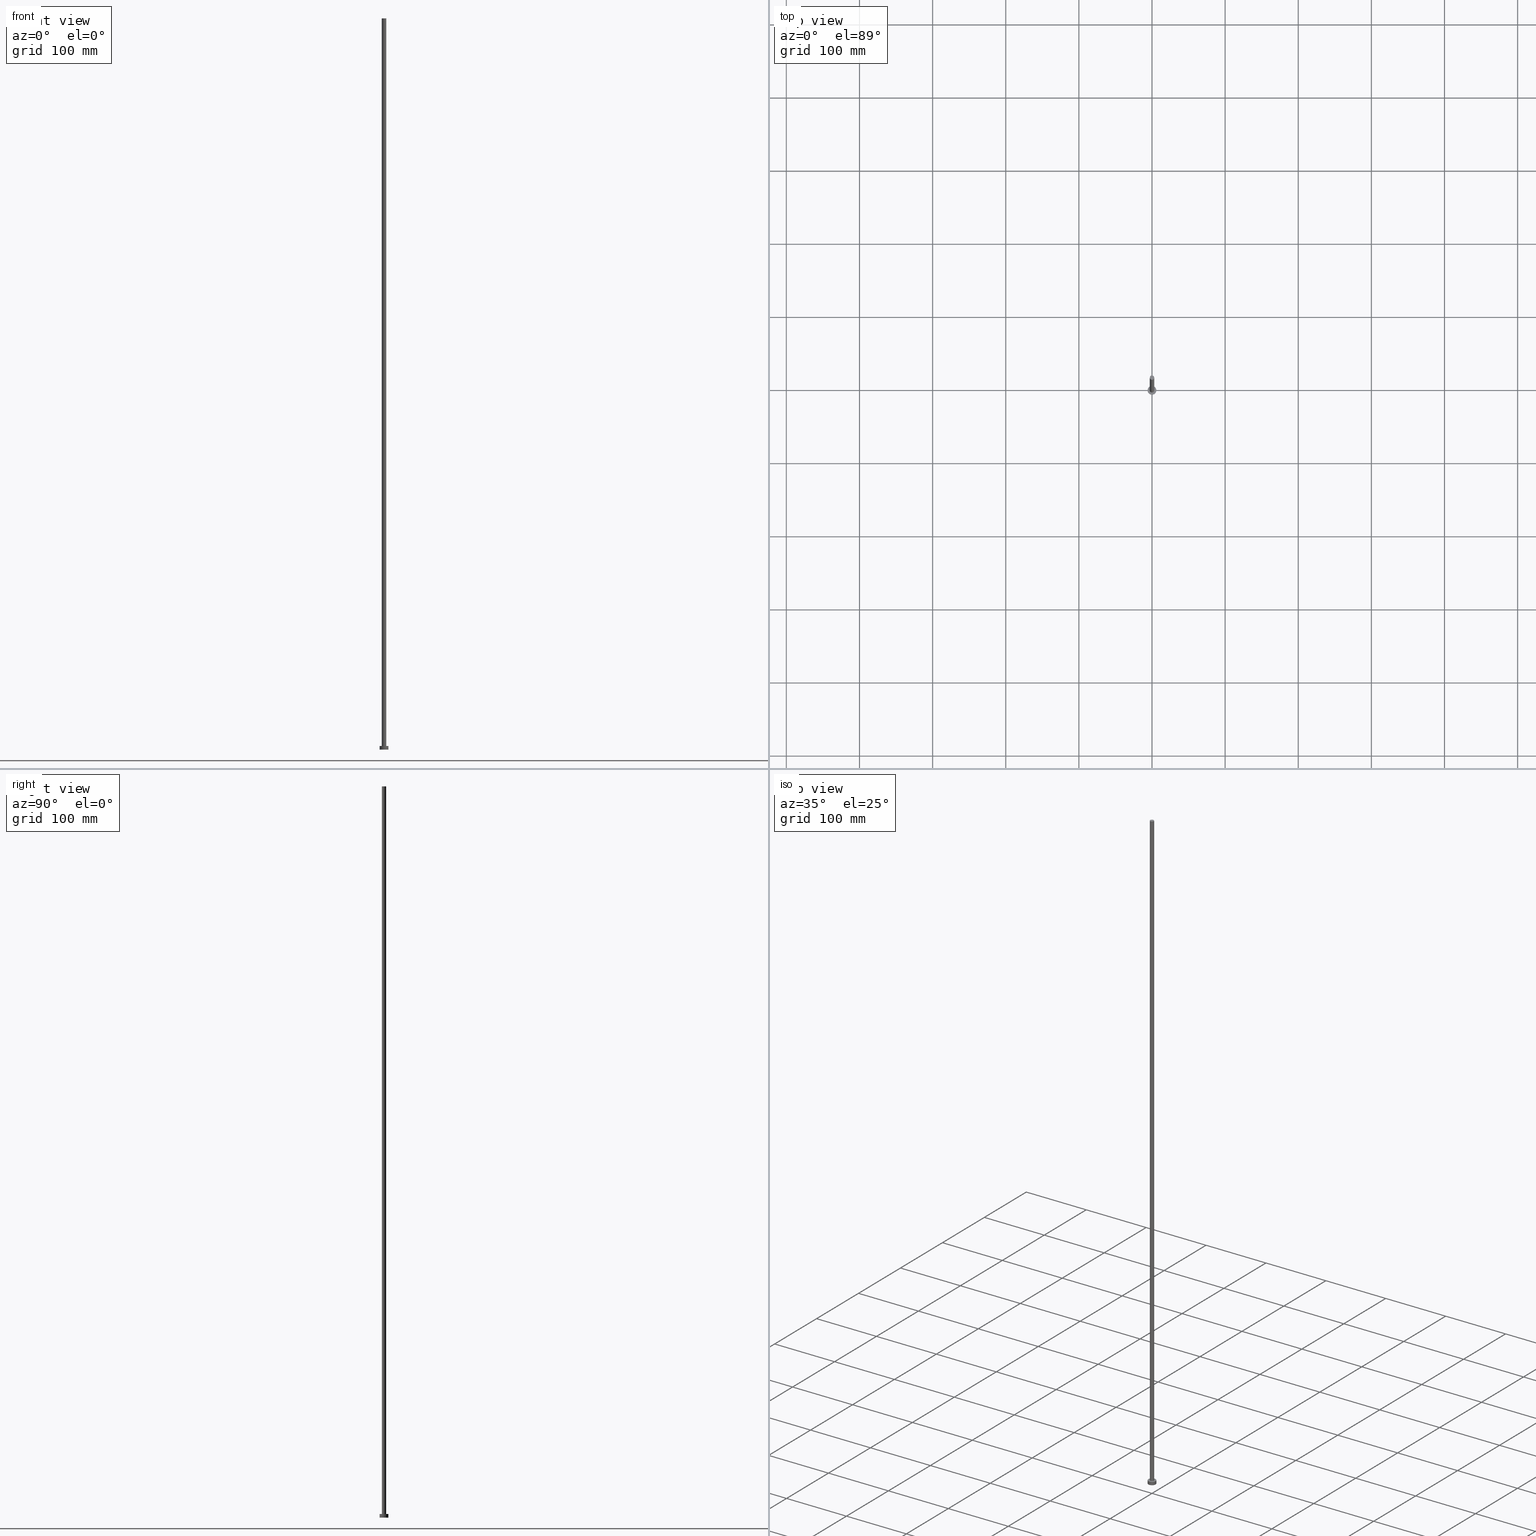
[diagram: canonical four-view strip — front | top / right | iso, engineering-drawing reading convention]
A machine part, canonical four-view strip (front | top / right | iso — engineering-drawing reading convention). The complete STEP part file that produces these views, byte-faithful:
ISO-10303-21;
HEADER;
FILE_DESCRIPTION (( 'STEP AP203' ),
    '1' );
FILE_NAME ('f8f7.STEP',
    '2023-02-13T14:06:24',
    ( '' ),
    ( '' ),
    'SwSTEP 2.0',
    'SolidWorks 2019',
    '' );
FILE_SCHEMA (( 'CONFIG_CONTROL_DESIGN' ));
ENDSEC;

DATA;
#1 = PLANE ( 'NONE',  #122 ) ;
#2 = APPLICATION_PROTOCOL_DEFINITION ( 'international standard', 'config_control_design', 1994, #42 ) ;
#3 = DIRECTION ( 'NONE',  ( 1.000000000000000000, 0.000000000000000000, 0.000000000000000000 ) ) ;
#4 = PERSON_AND_ORGANIZATION ( #84, #137 ) ;
#5 = AXIS2_PLACEMENT_3D ( 'NONE', #251, #38, #22 ) ;
#6 = DIRECTION ( 'NONE',  ( 1.000000000000000000, 0.000000000000000000, 0.000000000000000000 ) ) ;
#7 = UNCERTAINTY_MEASURE_WITH_UNIT (LENGTH_MEASURE( 1.000000000000000082E-05 ), #232, 'distance_accuracy_value', 'NONE');
#8 = DIRECTION ( 'NONE',  ( -1.000000000000000000, 0.000000000000000000, 0.000000000000000000 ) ) ;
#9 = LINE ( 'NONE', #164, #147 ) ;
#10 = PERSON_AND_ORGANIZATION ( #84, #137 ) ;
#11 = DIRECTION ( 'NONE',  ( -1.000000000000000000, 0.000000000000000000, 0.000000000000000000 ) ) ;
#12 = CC_DESIGN_PERSON_AND_ORGANIZATION_ASSIGNMENT ( #214, #112, ( #71 ) ) ;
#13 = PERSON_AND_ORGANIZATION ( #84, #137 ) ;
#14 = FACE_OUTER_BOUND ( 'NONE', #105, .T. ) ;
#15 = DATE_AND_TIME ( #170, #124 ) ;
#16 = CARTESIAN_POINT ( 'NONE',  ( 0.000000000000000000, 0.000000000000000000, 0.000000000000000000 ) ) ;
#17 = DATE_AND_TIME ( #98, #234 ) ;
#18 = CIRCLE ( 'NONE', #64, 6.000000000000000888 ) ;
#19 = VECTOR ( 'NONE', #20, 1000.000000000000000 ) ;
#20 = DIRECTION ( 'NONE',  ( -0.000000000000000000, -0.000000000000000000, -1.000000000000000000 ) ) ;
#21 = CARTESIAN_POINT ( 'NONE',  ( -6.000000000000000888, 0.000000000000000000, 5.000000000000000000 ) ) ;
#22 = DIRECTION ( 'NONE',  ( 1.000000000000000000, 0.000000000000000000, -0.000000000000000000 ) ) ;
#23 = VERTEX_POINT ( 'NONE', #21 ) ;
#24 = DIRECTION ( 'NONE',  ( 1.000000000000000000, 0.000000000000000000, 0.000000000000000000 ) ) ;
#25 = DIRECTION ( 'NONE',  ( 0.000000000000000000, 0.000000000000000000, 1.000000000000000000 ) ) ;
#26 = ORIENTED_EDGE ( 'NONE', *, *, #56, .F. ) ;
#27 = SECURITY_CLASSIFICATION ( '', '', #47 ) ;
#28 = CIRCLE ( 'NONE', #108, 3.000000000000000444 ) ;
#29 = PLANE ( 'NONE',  #52 ) ;
#30 = VECTOR ( 'NONE', #74, 1000.000000000000000 ) ;
#31 = AXIS2_PLACEMENT_3D ( 'NONE', #95, #123, #249 ) ;
#32 = APPROVAL_DATE_TIME ( #172, #102 ) ;
#33 = COORDINATED_UNIVERSAL_TIME_OFFSET ( 1, 0, .AHEAD. ) ;
#34 = ADVANCED_FACE ( 'NONE', ( #107 ), #161, .T. ) ;
#35 = CARTESIAN_POINT ( 'NONE',  ( -3.000000000000000444, 0.000000000000000000, 1000.000000000000000 ) ) ;
#36 = APPROVAL_STATUS ( 'not_yet_approved' ) ;
#37 = PERSON_AND_ORGANIZATION_ROLE ( 'classification_officer' ) ;
#38 = DIRECTION ( 'NONE',  ( 0.000000000000000000, 0.000000000000000000, 1.000000000000000000 ) ) ;
#39 = ORIENTED_EDGE ( 'NONE', *, *, #118, .T. ) ;
#40 = FACE_OUTER_BOUND ( 'NONE', #146, .T. ) ;
#41 = DIRECTION ( 'NONE',  ( 0.000000000000000000, 0.000000000000000000, 1.000000000000000000 ) ) ;
#42 = APPLICATION_CONTEXT ( 'configuration controlled 3d designs of mechanical parts and assemblies' ) ;
#43 = ORIENTED_EDGE ( 'NONE', *, *, #89, .F. ) ;
#44 = EDGE_LOOP ( 'NONE', ( #85, #155 ) ) ;
#45 = LOCAL_TIME ( 15, 6, 24.00000000000000000, #33 ) ;
#46 = DIRECTION ( 'NONE',  ( 1.000000000000000000, 0.000000000000000000, 0.000000000000000000 ) ) ;
#47 = SECURITY_CLASSIFICATION_LEVEL ( 'unclassified' ) ;
#48 = PERSON_AND_ORGANIZATION_ROLE ( 'design_owner' ) ;
#49 = DIRECTION ( 'NONE',  ( 0.000000000000000000, 0.000000000000000000, 1.000000000000000000 ) ) ;
#50 = COORDINATED_UNIVERSAL_TIME_OFFSET ( 1, 0, .AHEAD. ) ;
#51 = ADVANCED_FACE ( 'NONE', ( #128, #106 ), #1, .T. ) ;
#52 = AXIS2_PLACEMENT_3D ( 'NONE', #223, #73, #156 ) ;
#53 = DATE_AND_TIME ( #166, #45 ) ;
#54 = FACE_OUTER_BOUND ( 'NONE', #202, .T. ) ;
#55 = APPLICATION_CONTEXT ( 'configuration controlled 3d designs of mechanical parts and assemblies' ) ;
#56 = EDGE_CURVE ( 'NONE', #239, #236, #28, .T. ) ;
#57 = APPROVAL_PERSON_ORGANIZATION ( #121, #102, #90 ) ;
#58 = VERTEX_POINT ( 'NONE', #203 ) ;
#59 = CARTESIAN_POINT ( 'NONE',  ( 0.000000000000000000, 0.000000000000000000, 5.000000000000000000 ) ) ;
#60 = AXIS2_PLACEMENT_3D ( 'NONE', #68, #49, #131 ) ;
#61 = ORIENTED_EDGE ( 'NONE', *, *, #78, .T. ) ;
#62 = ORIENTED_EDGE ( 'NONE', *, *, #165, .F. ) ;
#63 = EDGE_CURVE ( 'NONE', #103, #58, #173, .T. ) ;
#64 = AXIS2_PLACEMENT_3D ( 'NONE', #91, #168, #46 ) ;
#65 = CARTESIAN_POINT ( 'NONE',  ( 0.000000000000000000, 0.000000000000000000, 5.000000000000000000 ) ) ;
#66 = CARTESIAN_POINT ( 'NONE',  ( -3.000000000000000444, 0.000000000000000000, 1000.000000000000000 ) ) ;
#67 = COORDINATED_UNIVERSAL_TIME_OFFSET ( 1, 0, .AHEAD. ) ;
#68 = CARTESIAN_POINT ( 'NONE',  ( 0.000000000000000000, 0.000000000000000000, 1000.000000000000000 ) ) ;
#69 = APPROVAL ( #36, 'NEUR�EN�' ) ;
#70 = CYLINDRICAL_SURFACE ( 'NONE', #167, 6.000000000000000888 ) ;
#71 = PRODUCT_DEFINITION_FORMATION_WITH_SPECIFIED_SOURCE ( 'LIBOVOLN�', '', #199, .NOT_KNOWN. ) ;
#72 = APPROVAL_ROLE ( '' ) ;
#73 = DIRECTION ( 'NONE',  ( 0.000000000000000000, 0.000000000000000000, 1.000000000000000000 ) ) ;
#74 = DIRECTION ( 'NONE',  ( -0.000000000000000000, -0.000000000000000000, -1.000000000000000000 ) ) ;
#75 = PERSON_AND_ORGANIZATION ( #84, #137 ) ;
#76 = CC_DESIGN_PERSON_AND_ORGANIZATION_ASSIGNMENT ( #13, #138, ( #71 ) ) ;
#77 = AXIS2_PLACEMENT_3D ( 'NONE', #186, #208, #207 ) ;
#78 = EDGE_CURVE ( 'NONE', #58, #103, #185, .T. ) ;
#79 = ORIENTED_EDGE ( 'NONE', *, *, #206, .F. ) ;
#80 = CARTESIAN_POINT ( 'NONE',  ( 0.000000000000000000, 0.000000000000000000, 5.000000000000000000 ) ) ;
#81 = AXIS2_PLACEMENT_3D ( 'NONE', #180, #182, #3 ) ;
#82 = AXIS2_PLACEMENT_3D ( 'NONE', #88, #163, #24 ) ;
#83 = ORIENTED_EDGE ( 'NONE', *, *, #240, .T. ) ;
#84 = PERSON ( 'NEUR�EN�', 'NEUR�EN�', 'NEUR�EN�', ('NEUR�EN�'), ('NEUR�EN�'), ('NEUR�EN�') ) ;
#85 = ORIENTED_EDGE ( 'NONE', *, *, #240, .F. ) ;
#86 = PRODUCT_RELATED_PRODUCT_CATEGORY ( 'detail', '', ( #199 ) ) ;
#87 = AXIS2_PLACEMENT_3D ( 'NONE', #250, #171, #211 ) ;
#88 = CARTESIAN_POINT ( 'NONE',  ( 0.000000000000000000, 0.000000000000000000, 0.000000000000000000 ) ) ;
#89 = EDGE_CURVE ( 'NONE', #23, #241, #9, .T. ) ;
#90 = APPROVAL_ROLE ( '' ) ;
#91 = CARTESIAN_POINT ( 'NONE',  ( 0.000000000000000000, 0.000000000000000000, 5.000000000000000000 ) ) ;
#92 = APPROVAL_PERSON_ORGANIZATION ( #119, #69, #244 ) ;
#93 = COORDINATED_UNIVERSAL_TIME_OFFSET ( 1, 0, .AHEAD. ) ;
#94 = DESIGN_CONTEXT ( 'detailed design', #55, 'design' ) ;
#95 = CARTESIAN_POINT ( 'NONE',  ( 0.000000000000000000, 0.000000000000000000, 1000.000000000000000 ) ) ;
#96 = PRODUCT_DEFINITION ( 'NEZN�M�', '', #71, #94 ) ;
#97 = DATE_TIME_ROLE ( 'creation_date' ) ;
#98 = CALENDAR_DATE ( 2023, 13, 2 ) ;
#99 = CC_DESIGN_PERSON_AND_ORGANIZATION_ASSIGNMENT ( #10, #37, ( #27 ) ) ;
#100 = CARTESIAN_POINT ( 'NONE',  ( -3.000000000000000444, 0.000000000000000000, 5.000000000000000000 ) ) ;
#101 = ORIENTED_EDGE ( 'NONE', *, *, #224, .F. ) ;
#102 = APPROVAL ( #188, 'NEUR�EN�' ) ;
#103 = VERTEX_POINT ( 'NONE', #66 ) ;
#104 = DIRECTION ( 'NONE',  ( 0.000000000000000000, 0.000000000000000000, 1.000000000000000000 ) ) ;
#105 = EDGE_LOOP ( 'NONE', ( #238, #61 ) ) ;
#106 = FACE_OUTER_BOUND ( 'NONE', #126, .T. ) ;
#107 = FACE_OUTER_BOUND ( 'NONE', #160, .T. ) ;
#108 = AXIS2_PLACEMENT_3D ( 'NONE', #219, #41, #6 ) ;
#109 = CARTESIAN_POINT ( 'NONE',  ( 0.000000000000000000, 0.000000000000000000, 5.000000000000000000 ) ) ;
#110 = APPROVAL ( #116, 'NEUR�EN�' ) ;
#111 = DIRECTION ( 'NONE',  ( 1.000000000000000000, 0.000000000000000000, 0.000000000000000000 ) ) ;
#112 = PERSON_AND_ORGANIZATION_ROLE ( 'design_supplier' ) ;
#113 = DIRECTION ( 'NONE',  ( -0.000000000000000000, -0.000000000000000000, -1.000000000000000000 ) ) ;
#114 = SHAPE_DEFINITION_REPRESENTATION ( #159, #226 ) ;
#115 = DIRECTION ( 'NONE',  ( -0.000000000000000000, -0.000000000000000000, -1.000000000000000000 ) ) ;
#116 = APPROVAL_STATUS ( 'not_yet_approved' ) ;
#117 = CARTESIAN_POINT ( 'NONE',  ( 0.000000000000000000, 0.000000000000000000, 1000.000000000000000 ) ) ;
#118 = EDGE_CURVE ( 'NONE', #236, #239, #132, .T. ) ;
#119 = PERSON_AND_ORGANIZATION ( #84, #137 ) ;
#120 = CARTESIAN_POINT ( 'NONE',  ( -6.000000000000000888, 0.000000000000000000, 0.000000000000000000 ) ) ;
#121 = PERSON_AND_ORGANIZATION ( #84, #137 ) ;
#122 = AXIS2_PLACEMENT_3D ( 'NONE', #59, #25, #143 ) ;
#123 = DIRECTION ( 'NONE',  ( -0.000000000000000000, -0.000000000000000000, -1.000000000000000000 ) ) ;
#124 = LOCAL_TIME ( 15, 6, 24.00000000000000000, #230 ) ;
#125 = CC_DESIGN_DATE_AND_TIME_ASSIGNMENT ( #15, #97, ( #96 ) ) ;
#126 = EDGE_LOOP ( 'NONE', ( #220, #129 ) ) ;
#127 = ORIENTED_EDGE ( 'NONE', *, *, #118, .F. ) ;
#128 = FACE_BOUND ( 'NONE', #235, .T. ) ;
#129 = ORIENTED_EDGE ( 'NONE', *, *, #141, .T. ) ;
#130 = LOCAL_TIME ( 15, 6, 24.00000000000000000, #67 ) ;
#131 = DIRECTION ( 'NONE',  ( 1.000000000000000000, 0.000000000000000000, 0.000000000000000000 ) ) ;
#132 = CIRCLE ( 'NONE', #245, 3.000000000000000444 ) ;
#133 = DIRECTION ( 'NONE',  ( 0.000000000000000000, 0.000000000000000000, 1.000000000000000000 ) ) ;
#134 = DATE_AND_TIME ( #210, #233 ) ;
#135 = CC_DESIGN_DATE_AND_TIME_ASSIGNMENT ( #17, #190, ( #27 ) ) ;
#136 = LINE ( 'NONE', #139, #19 ) ;
#137 = ORGANIZATION ( 'NEUR�EN�', 'NEUR�EN�', '' ) ;
#138 = PERSON_AND_ORGANIZATION_ROLE ( 'creator' ) ;
#139 = CARTESIAN_POINT ( 'NONE',  ( 3.000000000000000444, 3.673940397442059868E-16, 1000.000000000000000 ) ) ;
#140 = CC_DESIGN_APPROVAL ( #110, ( #71 ) ) ;
#141 = EDGE_CURVE ( 'NONE', #145, #23, #231, .T. ) ;
#142 = ORIENTED_EDGE ( 'NONE', *, *, #176, .F. ) ;
#143 = DIRECTION ( 'NONE',  ( 1.000000000000000000, 0.000000000000000000, -0.000000000000000000 ) ) ;
#144 = MECHANICAL_CONTEXT ( 'NONE', #42, 'mechanical' ) ;
#145 = VERTEX_POINT ( 'NONE', #149 ) ;
#146 = EDGE_LOOP ( 'NONE', ( #253, #201, #39, #62 ) ) ;
#147 = VECTOR ( 'NONE', #115, 1000.000000000000000 ) ;
#148 = LINE ( 'NONE', #35, #242 ) ;
#149 = CARTESIAN_POINT ( 'NONE',  ( 6.000000000000000888, 7.347880794884120722E-16, 5.000000000000000000 ) ) ;
#150 = CARTESIAN_POINT ( 'NONE',  ( 3.000000000000000444, 3.673940397442059868E-16, 5.000000000000000000 ) ) ;
#151 = CC_DESIGN_PERSON_AND_ORGANIZATION_ASSIGNMENT ( #4, #48, ( #199 ) ) ;
#152 = CYLINDRICAL_SURFACE ( 'NONE', #218, 3.000000000000000444 ) ;
#153 = ORIENTED_EDGE ( 'NONE', *, *, #89, .T. ) ;
#154 =( NAMED_UNIT ( * ) SI_UNIT ( $, .STERADIAN. ) SOLID_ANGLE_UNIT ( ) );
#155 = ORIENTED_EDGE ( 'NONE', *, *, #255, .F. ) ;
#156 = DIRECTION ( 'NONE',  ( 1.000000000000000000, 0.000000000000000000, -0.000000000000000000 ) ) ;
#157 = ADVANCED_FACE ( 'NONE', ( #183 ), #70, .T. ) ;
#158 = ORIENTED_EDGE ( 'NONE', *, *, #141, .F. ) ;
#159 = PRODUCT_DEFINITION_SHAPE ( 'NONE', 'NONE',  #96 ) ;
#160 = EDGE_LOOP ( 'NONE', ( #158, #181, #177, #43 ) ) ;
#161 = CYLINDRICAL_SURFACE ( 'NONE', #216, 6.000000000000000888 ) ;
#162 = CIRCLE ( 'NONE', #174, 6.000000000000000888 ) ;
#163 = DIRECTION ( 'NONE',  ( 0.000000000000000000, 0.000000000000000000, 1.000000000000000000 ) ) ;
#164 = CARTESIAN_POINT ( 'NONE',  ( -6.000000000000000888, 0.000000000000000000, 5.000000000000000000 ) ) ;
#165 = EDGE_CURVE ( 'NONE', #103, #239, #148, .T. ) ;
#166 = CALENDAR_DATE ( 2023, 13, 2 ) ;
#167 = AXIS2_PLACEMENT_3D ( 'NONE', #109, #113, #11 ) ;
#168 = DIRECTION ( 'NONE',  ( 0.000000000000000000, 0.000000000000000000, 1.000000000000000000 ) ) ;
#169 = PERSON_AND_ORGANIZATION_ROLE ( 'creator' ) ;
#170 = CALENDAR_DATE ( 2023, 13, 2 ) ;
#171 = DIRECTION ( 'NONE',  ( 0.000000000000000000, 0.000000000000000000, 1.000000000000000000 ) ) ;
#172 = DATE_AND_TIME ( #194, #130 ) ;
#173 = CIRCLE ( 'NONE', #81, 3.000000000000000444 ) ;
#174 = AXIS2_PLACEMENT_3D ( 'NONE', #16, #104, #252 ) ;
#175 = CC_DESIGN_SECURITY_CLASSIFICATION ( #27, ( #71 ) ) ;
#176 = EDGE_CURVE ( 'NONE', #23, #145, #18, .T. ) ;
#177 = ORIENTED_EDGE ( 'NONE', *, *, #255, .T. ) ;
#178 = DIRECTION ( 'NONE',  ( -0.000000000000000000, -0.000000000000000000, -1.000000000000000000 ) ) ;
#179 = ADVANCED_FACE ( 'NONE', ( #248 ), #29, .F. ) ;
#180 = CARTESIAN_POINT ( 'NONE',  ( 0.000000000000000000, 0.000000000000000000, 1000.000000000000000 ) ) ;
#181 = ORIENTED_EDGE ( 'NONE', *, *, #206, .T. ) ;
#182 = DIRECTION ( 'NONE',  ( 0.000000000000000000, 0.000000000000000000, 1.000000000000000000 ) ) ;
#183 = FACE_OUTER_BOUND ( 'NONE', #221, .T. ) ;
#184 = MANIFOLD_SOLID_BREP ( 'P�idat vysunut�m3', #228 ) ;
#185 = CIRCLE ( 'NONE', #60, 3.000000000000000444 ) ;
#186 = CARTESIAN_POINT ( 'NONE',  ( 0.000000000000000000, 0.000000000000000000, 5.000000000000000000 ) ) ;
#187 = APPROVAL_DATE_TIME ( #53, #110 ) ;
#188 = APPROVAL_STATUS ( 'not_yet_approved' ) ;
#189 = DIRECTION ( 'NONE',  ( -0.000000000000000000, -0.000000000000000000, -1.000000000000000000 ) ) ;
#190 = DATE_TIME_ROLE ( 'classification_date' ) ;
#191 = DIRECTION ( 'NONE',  ( -0.000000000000000000, -0.000000000000000000, -1.000000000000000000 ) ) ;
#192 = APPROVAL_DATE_TIME ( #134, #69 ) ;
#193 = LINE ( 'NONE', #229, #30 ) ;
#194 = CALENDAR_DATE ( 2023, 13, 2 ) ;
#195 = CYLINDRICAL_SURFACE ( 'NONE', #31, 3.000000000000000444 ) ;
#196 = CARTESIAN_POINT ( 'NONE',  ( 6.000000000000000888, 7.347880794884120722E-16, 0.000000000000000000 ) ) ;
#197 = ADVANCED_FACE ( 'NONE', ( #54 ), #152, .T. ) ;
#198 = ORIENTED_EDGE ( 'NONE', *, *, #63, .F. ) ;
#199 = PRODUCT ( 'f8f7', 'f8f7', '', ( #144 ) ) ;
#200 = ADVANCED_FACE ( 'NONE', ( #14 ), #209, .T. ) ;
#201 = ORIENTED_EDGE ( 'NONE', *, *, #224, .T. ) ;
#202 = EDGE_LOOP ( 'NONE', ( #101, #198, #205, #217 ) ) ;
#203 = CARTESIAN_POINT ( 'NONE',  ( 3.000000000000000444, 3.673940397442059868E-16, 1000.000000000000000 ) ) ;
#204 = ADVANCED_FACE ( 'NONE', ( #40 ), #195, .T. ) ;
#205 = ORIENTED_EDGE ( 'NONE', *, *, #165, .T. ) ;
#206 = EDGE_CURVE ( 'NONE', #145, #222, #193, .T. ) ;
#207 = DIRECTION ( 'NONE',  ( 1.000000000000000000, 0.000000000000000000, 0.000000000000000000 ) ) ;
#208 = DIRECTION ( 'NONE',  ( 0.000000000000000000, 0.000000000000000000, 1.000000000000000000 ) ) ;
#209 = PLANE ( 'NONE',  #5 ) ;
#210 = CALENDAR_DATE ( 2023, 13, 2 ) ;
#211 = DIRECTION ( 'NONE',  ( 1.000000000000000000, 0.000000000000000000, 0.000000000000000000 ) ) ;
#212 = CC_DESIGN_PERSON_AND_ORGANIZATION_ASSIGNMENT ( #246, #169, ( #96 ) ) ;
#213 = CIRCLE ( 'NONE', #87, 6.000000000000000888 ) ;
#214 = PERSON_AND_ORGANIZATION ( #84, #137 ) ;
#215 =( NAMED_UNIT ( * ) PLANE_ANGLE_UNIT ( ) SI_UNIT ( $, .RADIAN. ) );
#216 = AXIS2_PLACEMENT_3D ( 'NONE', #80, #178, #8 ) ;
#217 = ORIENTED_EDGE ( 'NONE', *, *, #56, .T. ) ;
#218 = AXIS2_PLACEMENT_3D ( 'NONE', #117, #191, #237 ) ;
#219 = CARTESIAN_POINT ( 'NONE',  ( 0.000000000000000000, 0.000000000000000000, 5.000000000000000000 ) ) ;
#220 = ORIENTED_EDGE ( 'NONE', *, *, #176, .T. ) ;
#221 = EDGE_LOOP ( 'NONE', ( #79, #142, #153, #83 ) ) ;
#222 = VERTEX_POINT ( 'NONE', #196 ) ;
#223 = CARTESIAN_POINT ( 'NONE',  ( 0.000000000000000000, 0.000000000000000000, 0.000000000000000000 ) ) ;
#224 = EDGE_CURVE ( 'NONE', #58, #236, #136, .T. ) ;
#225 = CC_DESIGN_APPROVAL ( #69, ( #96 ) ) ;
#226 = ADVANCED_BREP_SHAPE_REPRESENTATION ( 'f8f7', ( #184, #82 ), #243 ) ;
#227 = APPLICATION_PROTOCOL_DEFINITION ( 'international standard', 'config_control_design', 1994, #55 ) ;
#228 = CLOSED_SHELL ( 'NONE', ( #204, #34, #157, #51, #179, #197, #200 ) ) ;
#229 = CARTESIAN_POINT ( 'NONE',  ( 6.000000000000000888, 7.347880794884120722E-16, 5.000000000000000000 ) ) ;
#230 = COORDINATED_UNIVERSAL_TIME_OFFSET ( 1, 0, .AHEAD. ) ;
#231 = CIRCLE ( 'NONE', #77, 6.000000000000000888 ) ;
#232 =( LENGTH_UNIT ( ) NAMED_UNIT ( * ) SI_UNIT ( .MILLI., .METRE. ) );
#233 = LOCAL_TIME ( 15, 6, 24.00000000000000000, #50 ) ;
#234 = LOCAL_TIME ( 15, 6, 24.00000000000000000, #93 ) ;
#235 = EDGE_LOOP ( 'NONE', ( #26, #127 ) ) ;
#236 = VERTEX_POINT ( 'NONE', #150 ) ;
#237 = DIRECTION ( 'NONE',  ( -1.000000000000000000, 0.000000000000000000, 0.000000000000000000 ) ) ;
#238 = ORIENTED_EDGE ( 'NONE', *, *, #63, .T. ) ;
#239 = VERTEX_POINT ( 'NONE', #100 ) ;
#240 = EDGE_CURVE ( 'NONE', #241, #222, #213, .T. ) ;
#241 = VERTEX_POINT ( 'NONE', #120 ) ;
#242 = VECTOR ( 'NONE', #189, 1000.000000000000000 ) ;
#243 =( GEOMETRIC_REPRESENTATION_CONTEXT ( 3 ) GLOBAL_UNCERTAINTY_ASSIGNED_CONTEXT ( ( #7 ) ) GLOBAL_UNIT_ASSIGNED_CONTEXT ( ( #232, #215, #154 ) ) REPRESENTATION_CONTEXT ( 'NONE', 'WORKASPACE' ) );
#244 = APPROVAL_ROLE ( '' ) ;
#245 = AXIS2_PLACEMENT_3D ( 'NONE', #65, #133, #111 ) ;
#246 = PERSON_AND_ORGANIZATION ( #84, #137 ) ;
#247 = APPROVAL_PERSON_ORGANIZATION ( #75, #110, #72 ) ;
#248 = FACE_OUTER_BOUND ( 'NONE', #44, .T. ) ;
#249 = DIRECTION ( 'NONE',  ( -1.000000000000000000, 0.000000000000000000, 0.000000000000000000 ) ) ;
#250 = CARTESIAN_POINT ( 'NONE',  ( 0.000000000000000000, 0.000000000000000000, 0.000000000000000000 ) ) ;
#251 = CARTESIAN_POINT ( 'NONE',  ( 0.000000000000000000, 0.000000000000000000, 1000.000000000000000 ) ) ;
#252 = DIRECTION ( 'NONE',  ( 1.000000000000000000, 0.000000000000000000, 0.000000000000000000 ) ) ;
#253 = ORIENTED_EDGE ( 'NONE', *, *, #78, .F. ) ;
#254 = CC_DESIGN_APPROVAL ( #102, ( #27 ) ) ;
#255 = EDGE_CURVE ( 'NONE', #222, #241, #162, .T. ) ;
ENDSEC;
END-ISO-10303-21;
